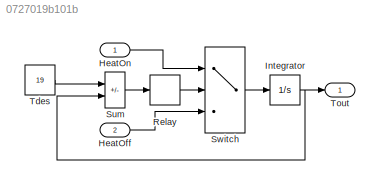
MODEL slx_0727019b101b
KIND model
CONFIG AbsTol = auto
CONFIG EnableMultiTasking = off
CONFIG FixedStep = auto
CONFIG MaxStep = auto
CONFIG MinStep = auto
CONFIG RelTol = 1e-3
CONFIG SampleTimeConstraint = Unconstrained
CONFIG Solver = VariableStepAuto
CONFIG SolverName = VariableStepAuto
CONFIG StartTime = 0.0
CONFIG StopTime = 10.0
BLOCK [Inport] HeatOff
  Port = 2
BLOCK [Inport] HeatOn
  NameLocation = top
BLOCK [Integrator] Integrator
  Ports = [1, 1]
BLOCK [Relay] Relay
  OffSwitchValue = -0.5
  OnSwitchValue = 0.5
BLOCK [Sum] Sum
  IconShape = rectangular
  Inputs = +-
  Ports = [2, 1]
BLOCK [Switch] Switch
  Criteria = u2 > Threshold
  InputSameDT = off
  SaturateOnIntegerOverflow = off
BLOCK [Constant] Tdes
  Value = 19
BLOCK [Outport] Tout
LINE HeatOff:1 -> Switch:3
LINE HeatOn:1 -> Switch:1
NET Integrator:1 -> Sum:2, Tout:1
LINE Relay:1 -> Switch:2
LINE Sum:1 -> Relay:1
LINE Switch:1 -> Integrator:1
LINE Tdes:1 -> Sum:1
note: NET lines group one-source signal fan-out (src -> all destinations, sorted); 1:1 wires keep LINE
